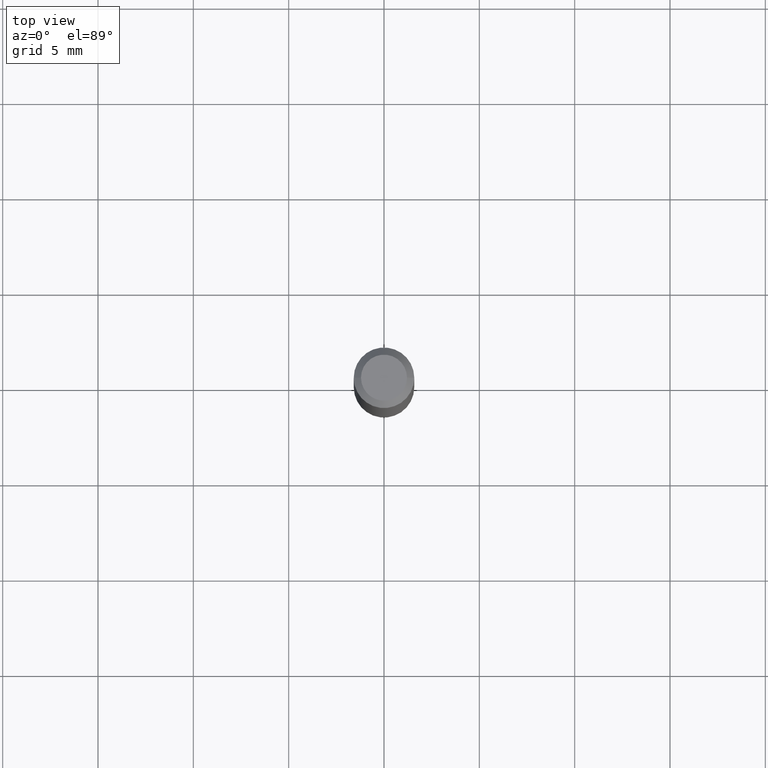
[diagram: clean part render]
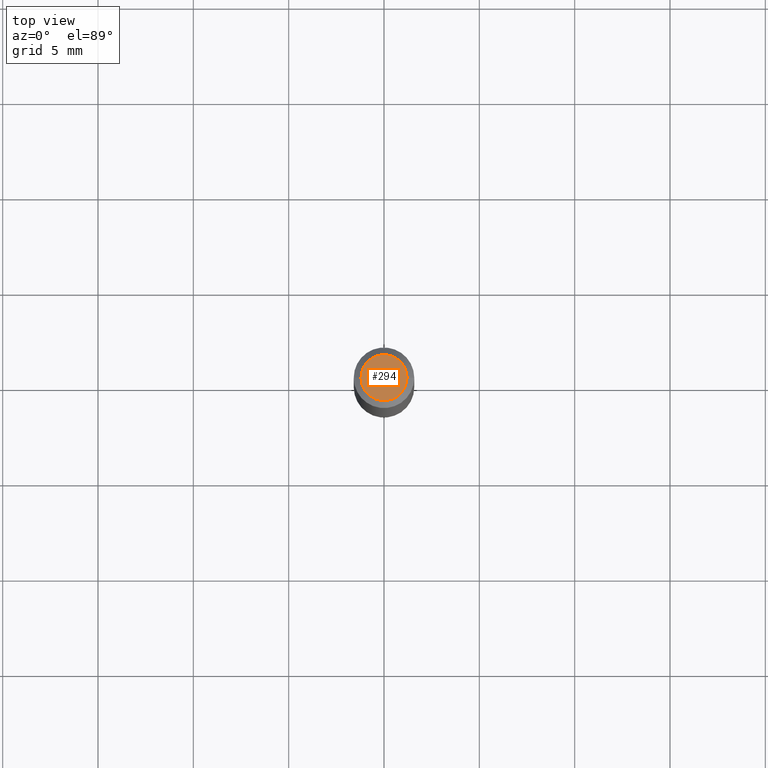
[diagram: same view with one face highlighted and labeled with its STEP entity id]
A machine part, top view. The second image highlights one B-rep face of the part: STEP entity #294.
In plain terms, the highlighted planar face has unit normal (0, -0, -1).
Its self-contained STEP definition (entity closure, byte-faithful):
#15 = FACE_OUTER_BOUND ( 'NONE', #89, .T. ) ;
#44 = AXIS2_PLACEMENT_3D ( 'NONE', #448, #85, #283 ) ;
#62 = DIRECTION ( 'NONE',  ( 2.438088387897960049E-29, -3.491481338843145188E-15, -1.000000000000000000 ) ) ;
#67 = CARTESIAN_POINT ( 'NONE',  ( -6.680649051745406845E-45, 9.538196290434862081E-31, 2.731847993664263218E-16 ) ) ;
#85 = DIRECTION ( 'NONE',  ( -2.445468806185136597E-29, 3.491481338843145583E-15, 1.000000000000000000 ) ) ;
#89 = EDGE_LOOP ( 'NONE', ( #495, #237 ) ) ;
#97 = CIRCLE ( 'NONE', #44, 0.04750000000000000749 ) ;
#101 = DIRECTION ( 'NONE',  ( -2.445468806185136597E-29, 3.491481338843145583E-15, 1.000000000000000000 ) ) ;
#139 = VERTEX_POINT ( 'NONE', #413 ) ;
#143 = CARTESIAN_POINT ( 'NONE',  ( 3.316907271900976589E-16, 0.04750000000000000749, -2.925296391183627249E-17 ) ) ;
#144 = VERTEX_POINT ( 'NONE', #249 ) ;
#158 = EDGE_CURVE ( 'NONE', #139, #144, #97, .T. ) ;
#217 = EDGE_CURVE ( 'NONE', #144, #139, #405, .T. ) ;
#237 = ORIENTED_EDGE ( 'NONE', *, *, #158, .T. ) ;
#249 = CARTESIAN_POINT ( 'NONE',  ( -0.04750000000000000749, 3.578768372314221353E-16, 2.731847993664239060E-16 ) ) ;
#250 = DIRECTION ( 'NONE',  ( 1.000000000000000000, -6.982962677686266711E-15, 4.852736867747365086E-29 ) ) ;
#283 = DIRECTION ( 'NONE',  ( 1.000000000000000000, -6.982962677686266711E-15, 4.852736867747365086E-29 ) ) ;
#294 = ADVANCED_FACE ( 'NONE', ( #15 ), #376, .F. ) ;
#295 = DIRECTION ( 'NONE',  ( -1.000000000000000000, 6.982962677686265922E-15, -4.876176775795935793E-29 ) ) ;
#375 = AXIS2_PLACEMENT_3D ( 'NONE', #143, #62, #295 ) ;
#376 = PLANE ( 'NONE',  #375 ) ;
#405 = CIRCLE ( 'NONE', #471, 0.04750000000000000749 ) ;
#413 = CARTESIAN_POINT ( 'NONE',  ( 0.04750000000000000749, -4.035134999187568762E-16, 2.731847993664288856E-16 ) ) ;
#448 = CARTESIAN_POINT ( 'NONE',  ( -6.680649051745406845E-45, 9.538196290434862081E-31, 2.731847993664263218E-16 ) ) ;
#471 = AXIS2_PLACEMENT_3D ( 'NONE', #67, #101, #250 ) ;
#495 = ORIENTED_EDGE ( 'NONE', *, *, #217, .T. ) ;